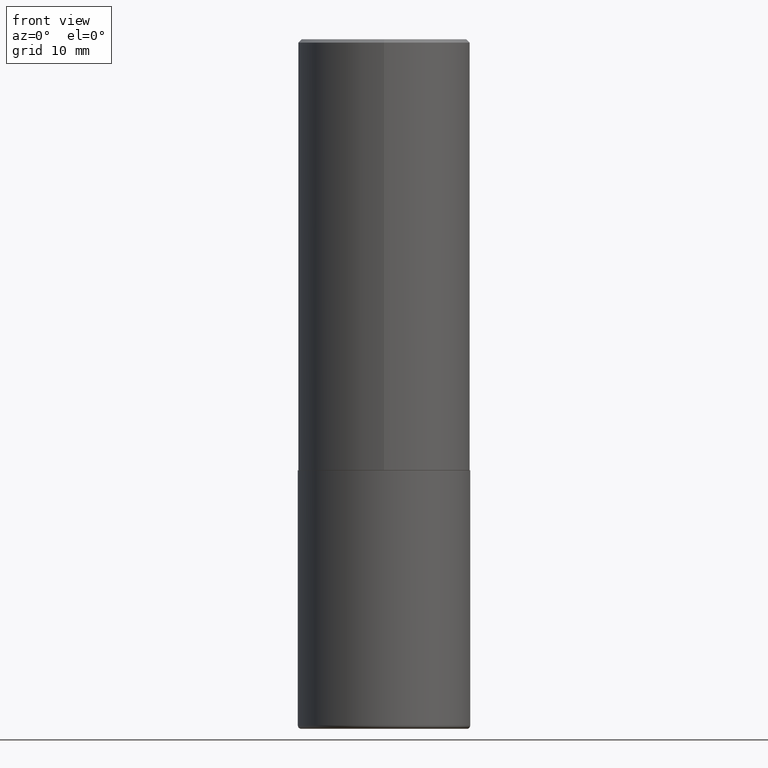
[diagram: clean part render]
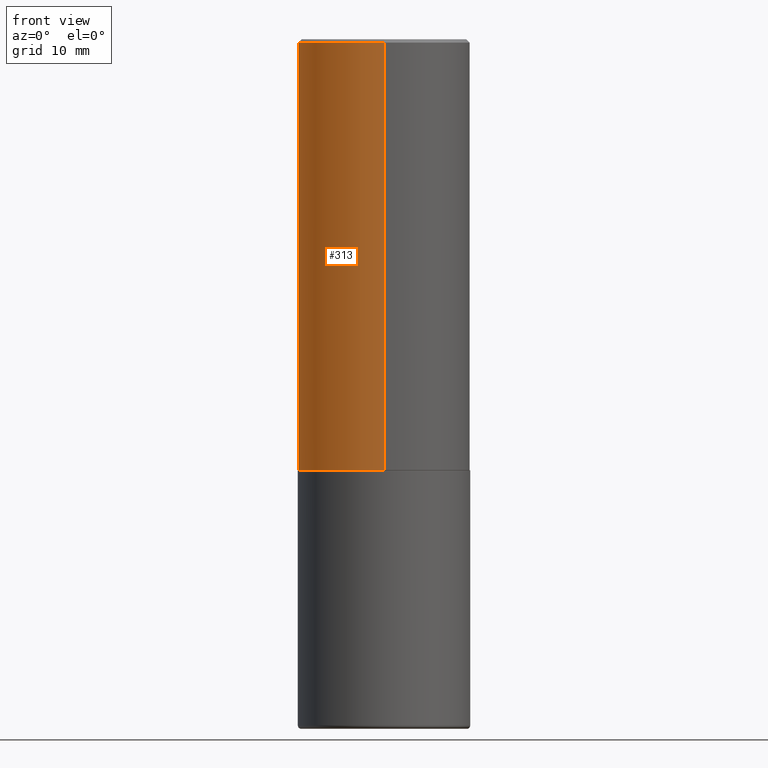
[diagram: same view with one face highlighted and labeled with its STEP entity id]
A machine part, front view. The second image highlights one B-rep face of the part: STEP entity #313.
In plain terms, the highlighted cylindrical surface (partial cylindrical patch) has radius 12.7 mm, axis along (-0, 0, 1).
Its self-contained STEP definition (entity closure, byte-faithful):
#2 = DIRECTION ( 'NONE',  ( -2.444465131706345255E-29, 3.492918657822378473E-15, 1.000000000000000000 ) ) ;
#3 = ORIENTED_EDGE ( 'NONE', *, *, #331, .T. ) ;
#8 = VECTOR ( 'NONE', #220, 39.37007874015748143 ) ;
#23 = DIRECTION ( 'NONE',  ( -2.444465131706345255E-29, 3.492918657822378473E-15, 1.000000000000000000 ) ) ;
#24 = CARTESIAN_POINT ( 'NONE',  ( 3.552713678800501718E-15, 0.5000000000000001110, -1.746459328911189631E-15 ) ) ;
#59 = VERTEX_POINT ( 'NONE', #210 ) ;
#65 = LINE ( 'NONE', #24, #90 ) ;
#67 = CARTESIAN_POINT ( 'NONE',  ( 0.000000000000000000, 0.000000000000000000, 0.000000000000000000 ) ) ;
#73 = ORIENTED_EDGE ( 'NONE', *, *, #219, .T. ) ;
#75 = CIRCLE ( 'NONE', #281, 0.5000000000000000000 ) ;
#90 = VECTOR ( 'NONE', #221, 39.37007874015748143 ) ;
#97 = FACE_OUTER_BOUND ( 'NONE', #286, .T. ) ;
#123 = CARTESIAN_POINT ( 'NONE',  ( -3.430248998885764992E-15, -0.5000000000000001110, -0.01999999999999835937 ) ) ;
#155 = CARTESIAN_POINT ( 'NONE',  ( 4.888930263412717169E-31, -6.985837315644793974E-17, -0.02000000000000010797 ) ) ;
#171 = VERTEX_POINT ( 'NONE', #123 ) ;
#185 = VERTEX_POINT ( 'NONE', #280 ) ;
#210 = CARTESIAN_POINT ( 'NONE',  ( -3.491481338843073796E-15, -0.5000000000000089928, -2.498999999999998778 ) ) ;
#219 = EDGE_CURVE ( 'NONE', #59, #171, #247, .T. ) ;
#220 = DIRECTION ( 'NONE',  ( -2.444465131706345255E-29, 3.492918657822378868E-15, 1.000000000000000000 ) ) ;
#221 = DIRECTION ( 'NONE',  ( -2.444465131706345255E-29, 3.492918657822378868E-15, 1.000000000000000000 ) ) ;
#229 = EDGE_CURVE ( 'NONE', #263, #171, #75, .T. ) ;
#230 = DIRECTION ( 'NONE',  ( -6.982962677686266711E-15, -1.000000000000000000, 3.278217592397114284E-15 ) ) ;
#236 = ORIENTED_EDGE ( 'NONE', *, *, #282, .F. ) ;
#247 = LINE ( 'NONE', #380, #8 ) ;
#258 = CARTESIAN_POINT ( 'NONE',  ( 6.108718364134157248E-29, -8.728803725898125516E-15, -2.499000000000000110 ) ) ;
#263 = VERTEX_POINT ( 'NONE', #307 ) ;
#273 = AXIS2_PLACEMENT_3D ( 'NONE', #67, #23, #406 ) ;
#280 = CARTESIAN_POINT ( 'NONE',  ( 3.552713678800533273E-15, 0.4999999999999916178, -2.499000000000001886 ) ) ;
#281 = AXIS2_PLACEMENT_3D ( 'NONE', #155, #339, #311 ) ;
#282 = EDGE_CURVE ( 'NONE', #185, #263, #65, .T. ) ;
#286 = EDGE_LOOP ( 'NONE', ( #236, #3, #73, #417 ) ) ;
#307 = CARTESIAN_POINT ( 'NONE',  ( 3.491481338843133355E-15, 0.4999999999999999445, -0.02000000000000185310 ) ) ;
#311 = DIRECTION ( 'NONE',  ( -6.982962677686265922E-15, -1.000000000000000000, 3.491643216902136408E-15 ) ) ;
#313 = ADVANCED_FACE ( 'NONE', ( #97 ), #344, .T. ) ;
#331 = EDGE_CURVE ( 'NONE', #185, #59, #366, .T. ) ;
#339 = DIRECTION ( 'NONE',  ( -2.444465131706345255E-29, 3.492918657822378473E-15, 1.000000000000000000 ) ) ;
#344 = CYLINDRICAL_SURFACE ( 'NONE', #273, 0.5000000000000001110 ) ;
#346 = AXIS2_PLACEMENT_3D ( 'NONE', #258, #2, #230 ) ;
#366 = CIRCLE ( 'NONE', #346, 0.5000000000000002220 ) ;
#380 = CARTESIAN_POINT ( 'NONE',  ( -3.491481338843133750E-15, -0.5000000000000001110, 1.746459328911189631E-15 ) ) ;
#406 = DIRECTION ( 'NONE',  ( -6.982962677686265922E-15, -1.000000000000000000, 3.492918657822378473E-15 ) ) ;
#417 = ORIENTED_EDGE ( 'NONE', *, *, #229, .F. ) ;